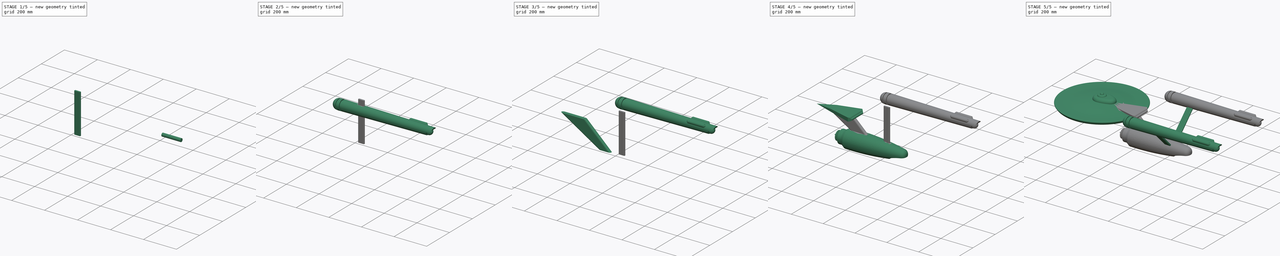
[diagram: build sequence overview — one tinted view per stage of 5, left to right]
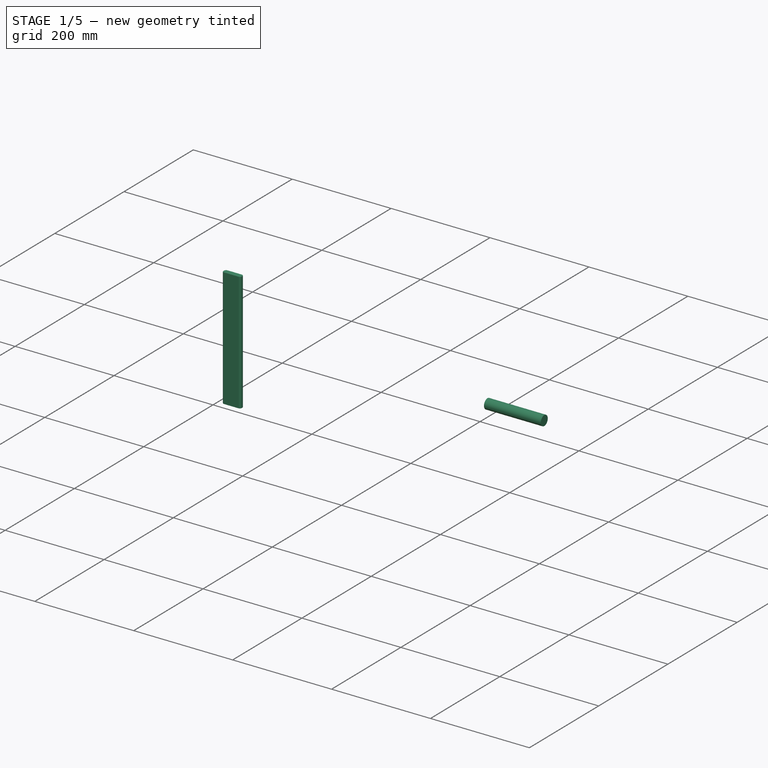
[diagram: stage 1 of 5 — iso view after this stage's code; geometry added in this stage tinted green]
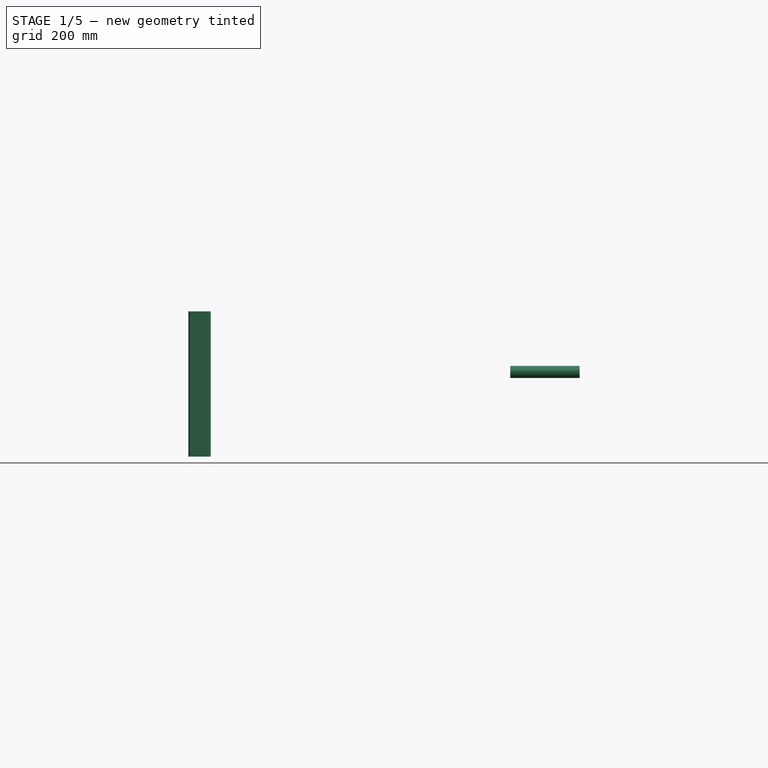
[diagram: stage 1 of 5 — front view after this stage's code; geometry added in this stage tinted green]
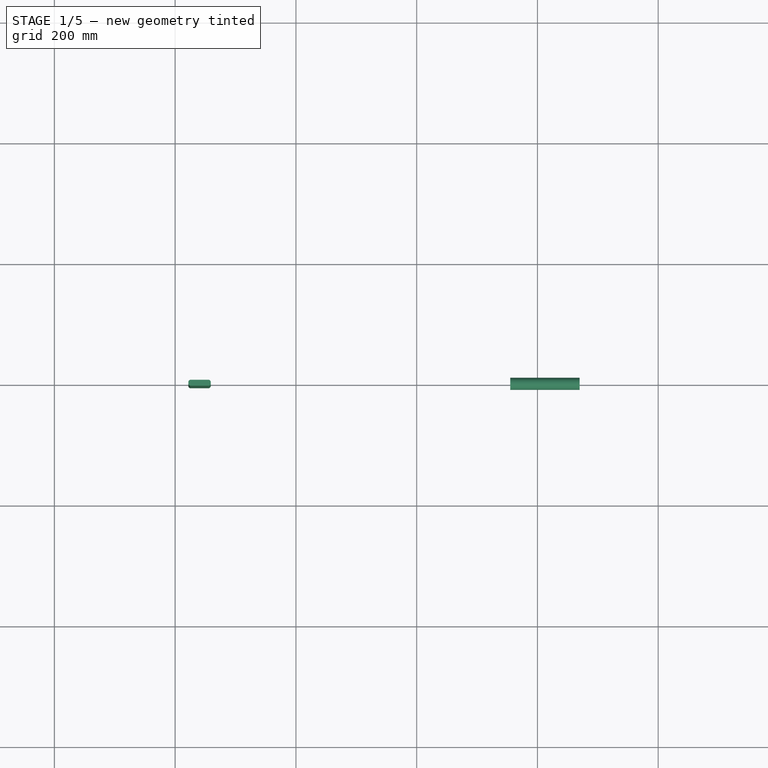
[diagram: stage 1 of 5 — top view after this stage's code; geometry added in this stage tinted green]
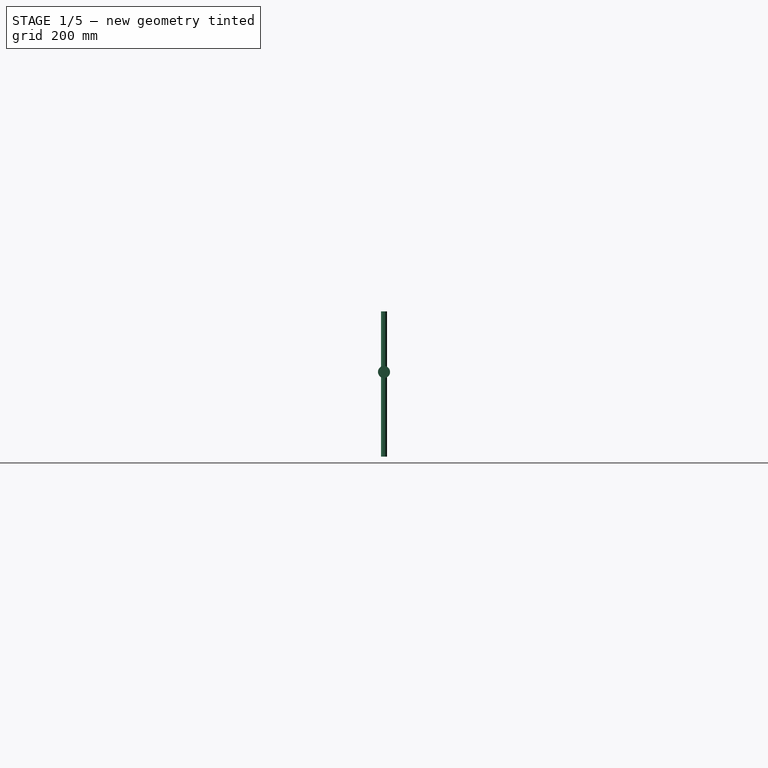
[diagram: stage 1 of 5 — right view after this stage's code; geometry added in this stage tinted green]
FCSTD DOCUMENT  (FreeCAD 0.19R23756 (Git))
Label: USS ENTERPRISE
License: Creative Commons Attribution-NonCommercial
LicenseURL: http://creativecommons.org/licenses/by-nc/4.0/
objects: Sketcher::SketchObject×12, PartDesign::Body×7, PartDesign::Pad×4, PartDesign::Revolution×3, PartDesign::Fillet×3, PartDesign::Pocket×3, Part::Feature×2, Part::MultiFuse×2, Image::ImagePlane×1, Part::Sphere×1, Part::Cylinder×1, Part::Chamfer×1, PartDesign::FeatureBase×1
note: 53 computed .brp shape members not serialized (recipe doc carries the construction recipe); baked Part::Feature solids carry a one-line shape summary decoded from their .brp

FEATURE [Part::Cylinder] Cylinder
  Angle = 360
  AttacherType = Attacher::AttachEngine3D
  Height = 115
  Placement = pos=(955,0,0) rot=(0,1,0;1.5708rad)
  Radius = 10
FEATURE [Part::Feature] Fusion001
  Placement = pos=(0,-190,0) rot=(0,0,1;0rad)
  shape: bbox 614.4 x 63.12 x 63.12 mm, 25 faces (baked)
FEATURE [Sketcher::SketchObject] Sketch011
  FullyConstrained = false
  MapMode = 5
  Placement = pos=(0,0,0) rot=(1,0,0;1.5708rad)
  Support = -> [XZ_Plane005]
  sketch-geometry (4):
    g0: LineSegment StartX=421.783 StartY=-140.192 StartZ=0 EndX=458.964 EndY=-140.192 EndZ=0
    g1: LineSegment StartX=458.964 StartY=-140.192 StartZ=0 EndX=458.964 EndY=100.295 EndZ=0
    g2: LineSegment StartX=458.964 StartY=100.295 StartZ=0 EndX=421.783 EndY=100.295 EndZ=0
    g3: LineSegment StartX=421.783 StartY=100.295 StartZ=0 EndX=421.783 EndY=-140.192 EndZ=0
  constraints (8):
    c: Coincident(g0,g1)
    c: Coincident(g1,g2)
    c: Coincident(g2,g3)
    c: Coincident(g3,g0)
    c: Horizontal(g0)
    c: Horizontal(g2)
    c: Vertical(g1)
    c: Vertical(g3)
FEATURE [PartDesign::Pad] Pad003
  Direction = (1,1,1)
  Length = 10
  Length2 = 100
  Midplane = true
  Placement = pos=(0,0,0) rot=(1,0,0;1.5708rad)
  Profile = -> Sketch011
  Type = 0
FEATURE [PartDesign::Fillet] Fillet002
  Base = -> Pad003 [Edge12,Edge11,Edge7,Edge6]
  BaseFeature = -> Pad003
  Placement = pos=(0,0,0) rot=(1,0,0;1.5708rad)
  Radius = 4
  SupportTransform = false
FEATURE [PartDesign::Body] Body005
  Group = -> [Sketch011,Pad003,Fillet002]
  Origin = -> Origin005
  Placement = pos=(0,-101.976,-43.771) rot=(1,0,0;0.785398rad)
  Tip = -> Fillet002
FEATURE [PartDesign::FeatureBase] Clone
  BaseFeature = -> Fillet002
  Placement = pos=(0,0,0) rot=(1,0,0;1.5708rad)
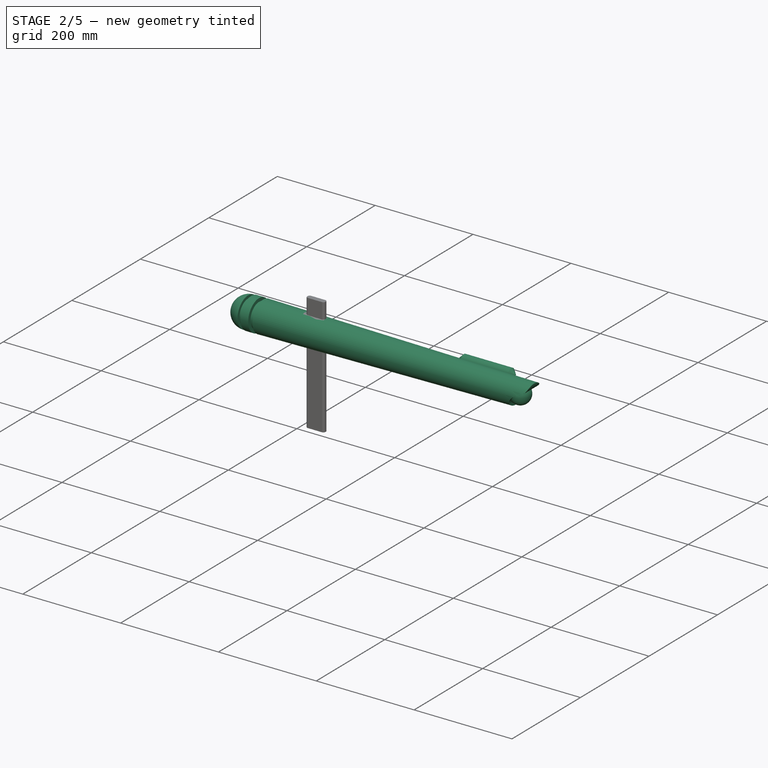
[diagram: stage 2 of 5 — iso view after this stage's code; geometry added in this stage tinted green]
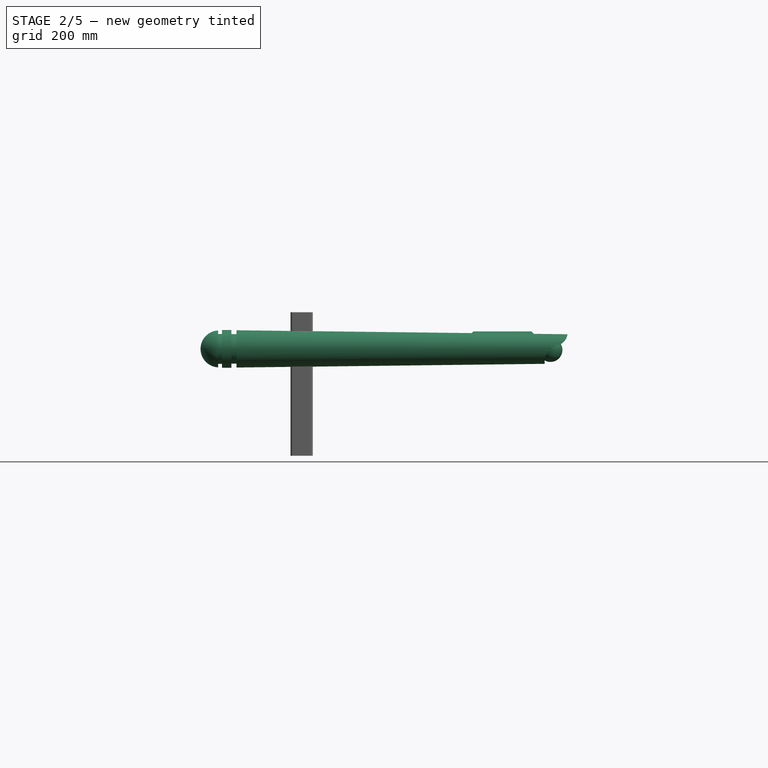
[diagram: stage 2 of 5 — front view after this stage's code; geometry added in this stage tinted green]
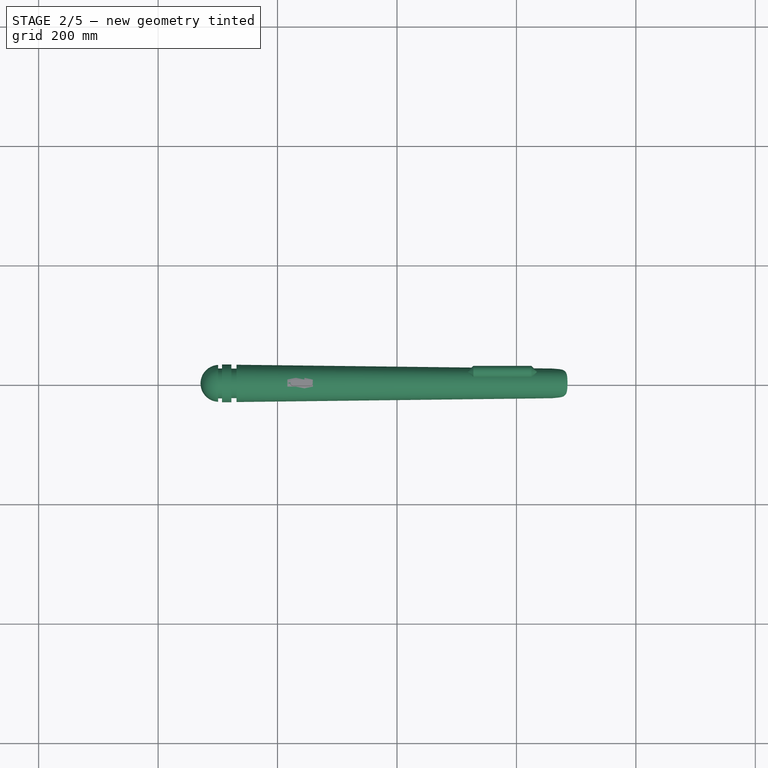
[diagram: stage 2 of 5 — top view after this stage's code; geometry added in this stage tinted green]
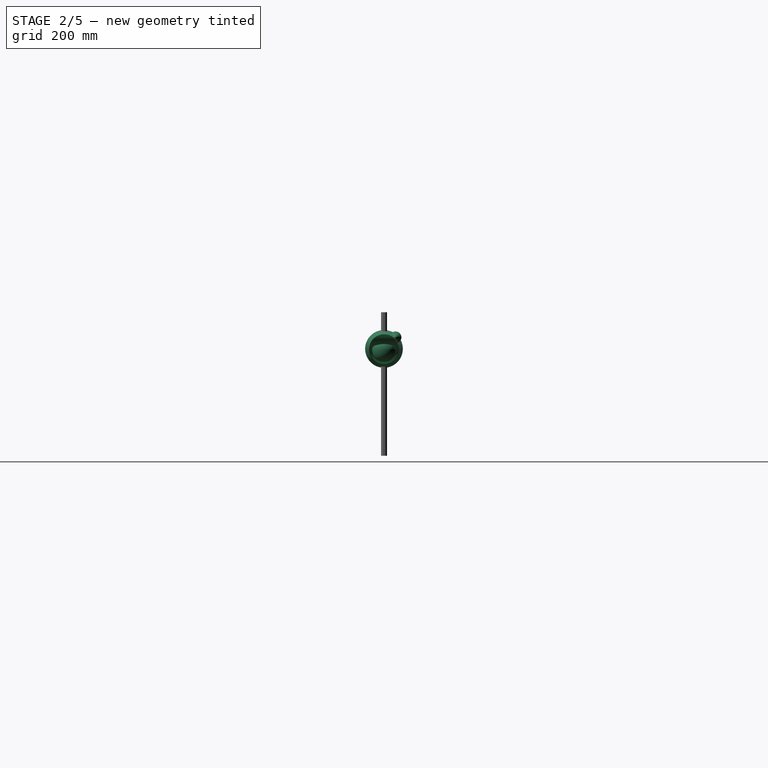
[diagram: stage 2 of 5 — right view after this stage's code; geometry added in this stage tinted green]
FEATURE [PartDesign::Body] Body003
  Group = -> [Sketch004,Pad002,Fillet001,Sketch005,Sketch006,Revolution001,Sketch007,Pocket001]
  Origin = -> Origin003
  Tip = -> Pocket001
FEATURE [Sketcher::SketchObject] Sketch008
  FullyConstrained = false
  MapMode = 5
  Placement = pos=(0,0,0) rot=(1,0,0;1.5708rad)
  Support = -> [XZ_Plane004]
  sketch-geometry (12):
    g0: LineSegment StartX=888.215 StartY=38.8108 StartZ=0 EndX=271.062 EndY=38.8108 EndZ=0
    g1: ArcOfCircle CenterX=301.969 CenterY=38.8108 CenterZ=0 NormalX=0 NormalY=0 NormalZ=1 AngleXU=0 Radius=30.9073 StartAngle=1.62005 EndAngle=3.14159
    g2: LineSegment StartX=300.447 StartY=69.6805 StartZ=0 EndX=300.52 EndY=69.6841 EndZ=0
    g3: LineSegment StartX=300.52 StartY=69.6841 StartZ=0 EndX=300.52 EndY=63.8034 EndZ=0
    g4: LineSegment StartX=300.52 StartY=63.8034 StartZ=0 EndX=307.016 EndY=63.8034 EndZ=0
    g5: LineSegment StartX=307.016 StartY=63.8034 StartZ=0 EndX=307.016 EndY=70.372 EndZ=0
    g6: LineSegment StartX=307.016 StartY=70.372 StartZ=0 EndX=322.765 EndY=70.372 EndZ=0
    g7: LineSegment StartX=322.765 StartY=70.372 StartZ=0 EndX=322.765 EndY=63.5411 EndZ=0
    g8: LineSegment StartX=322.765 StartY=63.5411 StartZ=0 EndX=331.216 EndY=63.5411 EndZ=0
    g9: LineSegment StartX=331.216 StartY=63.5411 StartZ=0 EndX=331.216 EndY=70.0263 EndZ=0
    g10: LineSegment StartX=331.216 StartY=70.0263 StartZ=0 EndX=888.215 EndY=63.3335 EndZ=0
    g11: LineSegment StartX=888.215 StartY=63.3335 StartZ=0 EndX=888.215 EndY=38.8108 EndZ=0
  constraints (21):
    c: Horizontal(g0)
    c: Perpendicular(g0,g1) = 1.5708
    c: Tangent(g1,g2) = 1.5708
    c: Coincident(g2,g3)
    c: Coincident(g3,g4)
    c: Coincident(g4,g5)
    c: Coincident(g5,g6)
    c: Horizontal(g6)
    c: Coincident(g6,g7)
    c: Vertical(g7)
    c: Coincident(g7,g8)
    c: Coincident(g8,g9)
    c: Coincident(g9,g10)
    c: Coincident(g10,g11)
    c: Coincident(g11,g0)
    c: Vertical(g11)
    c: Horizontal(g8)
    c: Horizontal(g4)
    c: Vertical(g3)
    c: Vertical(g5)
    c: Vertical(g9)
FEATURE [Sketcher::SketchObject] Sketch009
  ExternalGeometry = -> [Sketch008]
  FullyConstrained = false
  MapMode = 5
  Placement = pos=(0,0,0) rot=(1,0,0;1.5708rad)
  Support = -> [XZ_Plane004]
  sketch-geometry (1):
    g0: LineSegment StartX=271.062 StartY=38.8108 StartZ=0 EndX=888.429 EndY=38.8108 EndZ=0
  constraints (2):
    c: Coincident(g0,g-3)
    c: Horizontal(g0)
FEATURE [PartDesign::Revolution] Revolution002
  Angle = 360
  Axis = (1,0,0)
  Base = (271.062,8.6e-15,38.8108)
  Placement = pos=(0,0,0) rot=(1,0,0;1.5708rad)
  Profile = -> Sketch008
  ReferenceAxis = -> Sketch009 [Edge1]
  Reversed = true
FEATURE [Sketcher::SketchObject] Sketch010
  FullyConstrained = false
  MapMode = 5
  Placement = pos=(0,0,0) rot=(1,0,0;1.5708rad)
  Support = -> [XZ_Plane004]
  sketch-geometry (6):
    g0: LineSegment StartX=900.198 StartY=67.3385 StartZ=0 EndX=885.598 EndY=66.7317 EndZ=0
    g1: ArcOfCircle CenterX=864.156 CenterY=65.8404 CenterZ=0 NormalX=0 NormalY=0 NormalZ=1 AngleXU=0 Radius=21.4605 StartAngle=4.97062 EndAngle=6.32473
    g2: ArcOfCircle CenterX=877.333 CenterY=15.9535 CenterZ=0 NormalX=0 NormalY=0 NormalZ=1 AngleXU=0 Radius=30.1372 StartAngle=1.82902 EndAngle=3.69944
    g3: LineSegment StartX=851.765 StartY=-8.9e-15 StartZ=0 EndX=870.898 EndY=-30.6647 EndZ=0
    g4: LineSegment StartX=870.898 StartY=-30.6647 StartZ=0 EndX=932.641 EndY=17.9781 EndZ=0
    g5: LineSegment StartX=932.641 StartY=17.9781 StartZ=0 EndX=900.198 EndY=67.3385 EndZ=0
  constraints (7):
    c: Perpendicular(g0,g1) = 4.71239
    c: Tangent(g1,g2) = 1.5708
    c: PointOnObject(g2,g-1)
    c: Tangent(g2,g3) = -1.5708
    c: Coincident(g3,g4)
    c: Coincident(g4,g5)
    c: Coincident(g5,g0)
FEATURE [PartDesign::Pocket] Pocket002
  BaseFeature = -> Revolution002
  Length = 5
  Length2 = 100
  Midplane = true
  Placement = pos=(0,0,0) rot=(1,0,0;1.5708rad)
  Profile = -> Sketch010
  Type = 1
FEATURE [PartDesign::Body] Body004
  Group = -> [Sketch008,Sketch009,Revolution002,Sketch010,Pocket002]
  Origin = -> Origin004
  Tip = -> Pocket002
FEATURE [Part::Sphere] Sphere
  Angle1 = -90
  Angle2 = 90
  Angle3 = 360
  AttacherType = Attacher::AttachEngine3D
  Placement = pos=(857,0,37) rot=(0,0,1;0rad)
  Radius = 20
FEATURE [Part::Chamfer] Chamfer
  Base = -> Cylinder
  Edges = 2 edges r=9: [Edge1,Edge3]
  Placement = pos=(-236,19.0919,58.0919) rot=(1,0,0;5.49779rad)
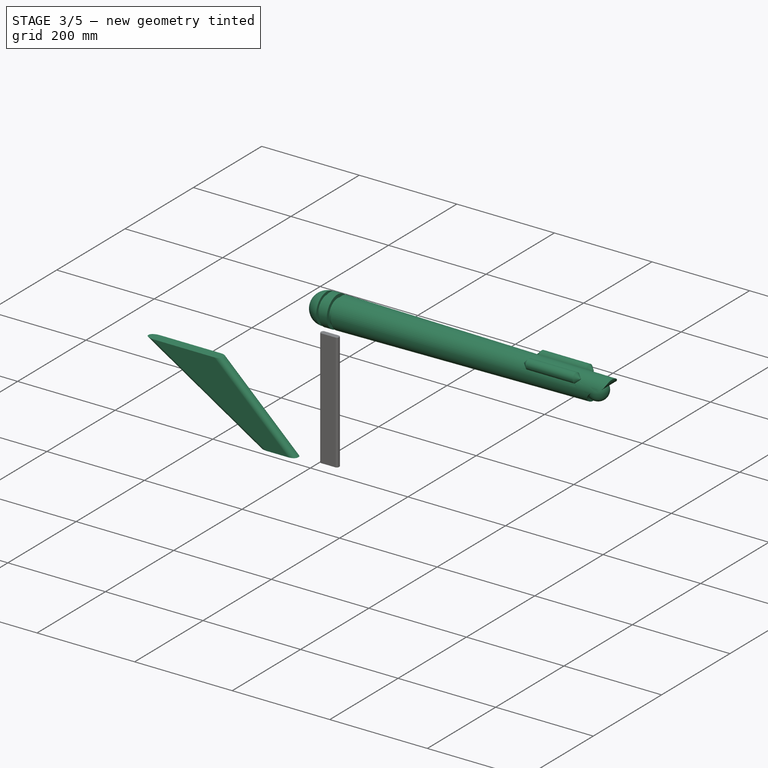
[diagram: stage 3 of 5 — iso view after this stage's code; geometry added in this stage tinted green]
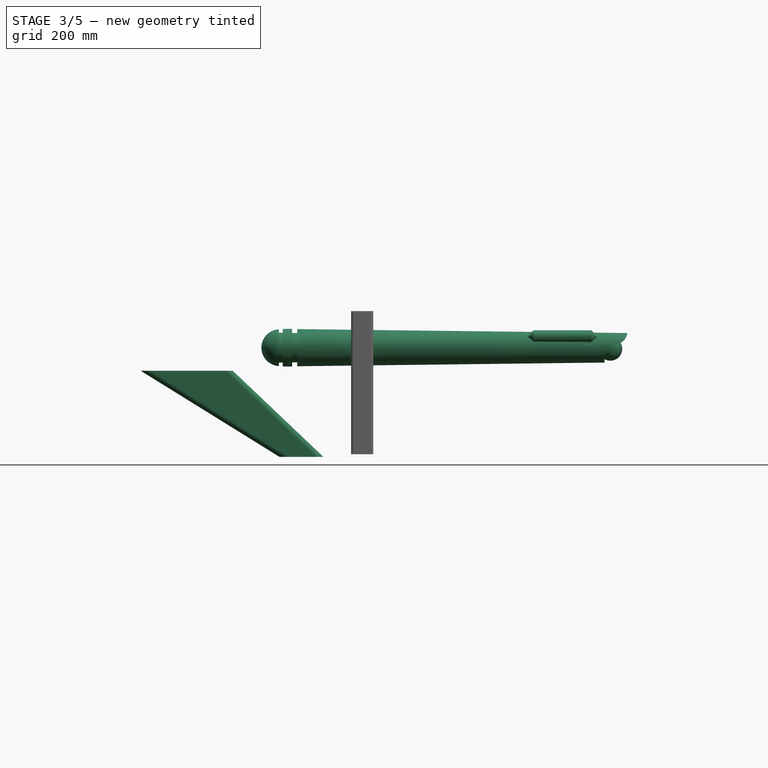
[diagram: stage 3 of 5 — front view after this stage's code; geometry added in this stage tinted green]
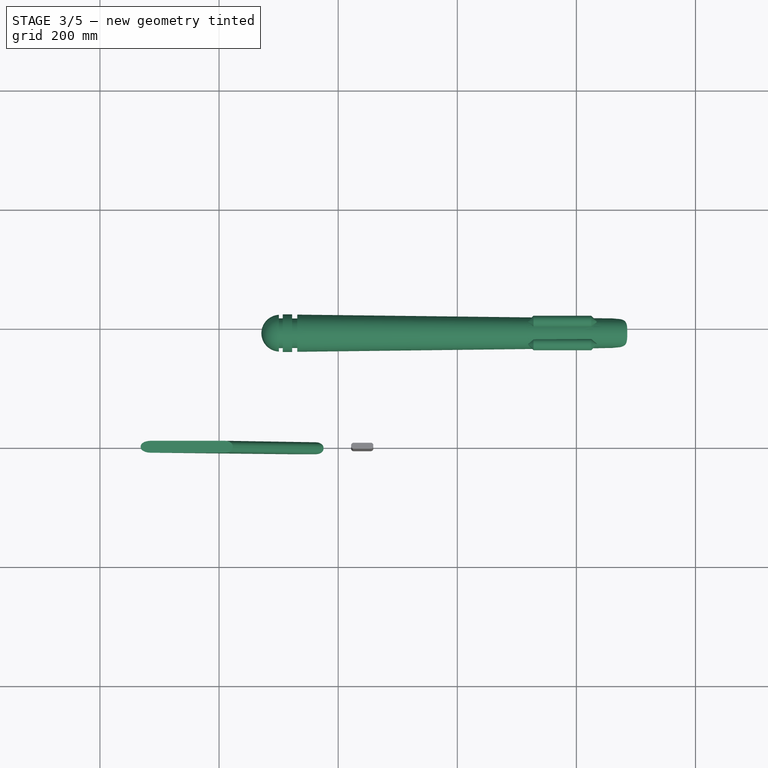
[diagram: stage 3 of 5 — top view after this stage's code; geometry added in this stage tinted green]
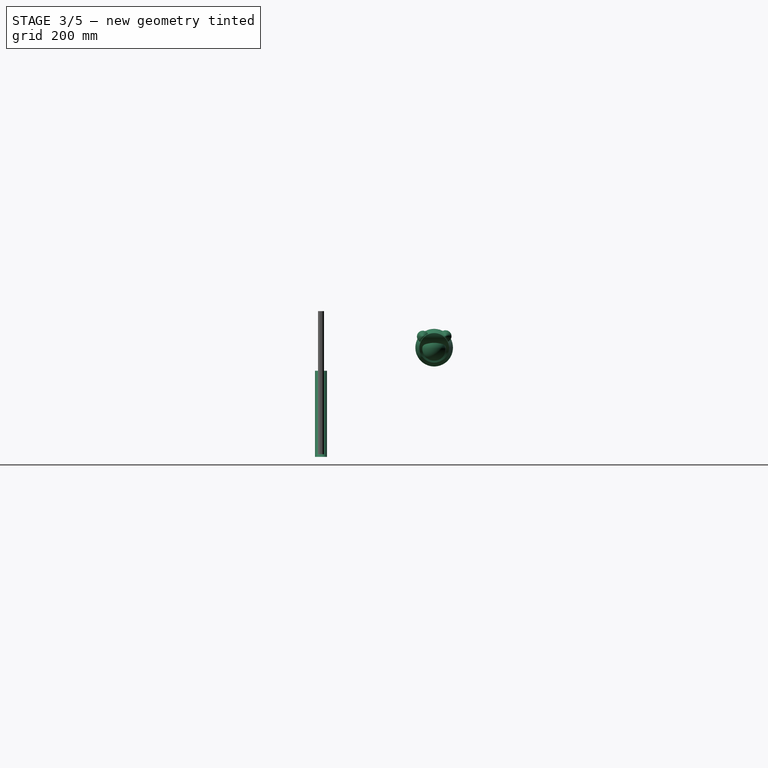
[diagram: stage 3 of 5 — right view after this stage's code; geometry added in this stage tinted green]
FEATURE [PartDesign::Body] Body002
  Group = -> [Sketch002,Pad001,Sketch003,Pocket]
  Origin = -> Origin002
  Tip = -> Pocket
FEATURE [Sketcher::SketchObject] Sketch004
  FullyConstrained = false
  MapMode = 5
  Placement = pos=(0,0,0) rot=(1,0,0;1.5708rad)
  Support = -> [XZ_Plane003]
  sketch-geometry (4):
    g0: LineSegment StartX=68.392 StartY=0 StartZ=0 EndX=301.532 EndY=-144.636 EndZ=0
    g1: LineSegment StartX=301.532 StartY=-144.636 StartZ=0 EndX=375.381 EndY=-144.636 EndZ=0
    g2: LineSegment StartX=375.381 StartY=-144.636 StartZ=0 EndX=223.041 EndY=0 EndZ=0
    g3: LineSegment StartX=223.041 StartY=0 StartZ=0 EndX=68.392 EndY=0 EndZ=0
  constraints (7):
    c: PointOnObject(g0,g-1)
    c: Coincident(g0,g1)
    c: Horizontal(g1)
    c: Coincident(g1,g2)
    c: PointOnObject(g2,g-1)
    c: Coincident(g2,g3)
    c: Coincident(g3,g0)
FEATURE [PartDesign::Pad] Pad002
  Direction = (1,1,1)
  Length = 20
  Length2 = 100
  Midplane = true
  Placement = pos=(0,0,0) rot=(1,0,0;1.5708rad)
  Profile = -> Sketch004
  Type = 0
FEATURE [PartDesign::Fillet] Fillet001
  Base = -> Pad002 [Edge4,Edge3,Edge10,Edge9]
  BaseFeature = -> Pad002
  Placement = pos=(0,0,0) rot=(1,0,0;1.5708rad)
  Radius = 9
  SupportTransform = false
FEATURE [Part::Feature] Chamfer001
  Placement = pos=(-236,-18.9584,57.3848) rot=(1,0,0;5.49779rad)
  shape: bbox 115 x 20 x 20 mm, 5 faces (baked)
FEATURE [Part::MultiFuse] Fusion
  Placement = pos=(0,190,0) rot=(0,0,1;0rad)
  Shapes = -> [Chamfer001,Chamfer,Sphere,Pocket002,Body004]
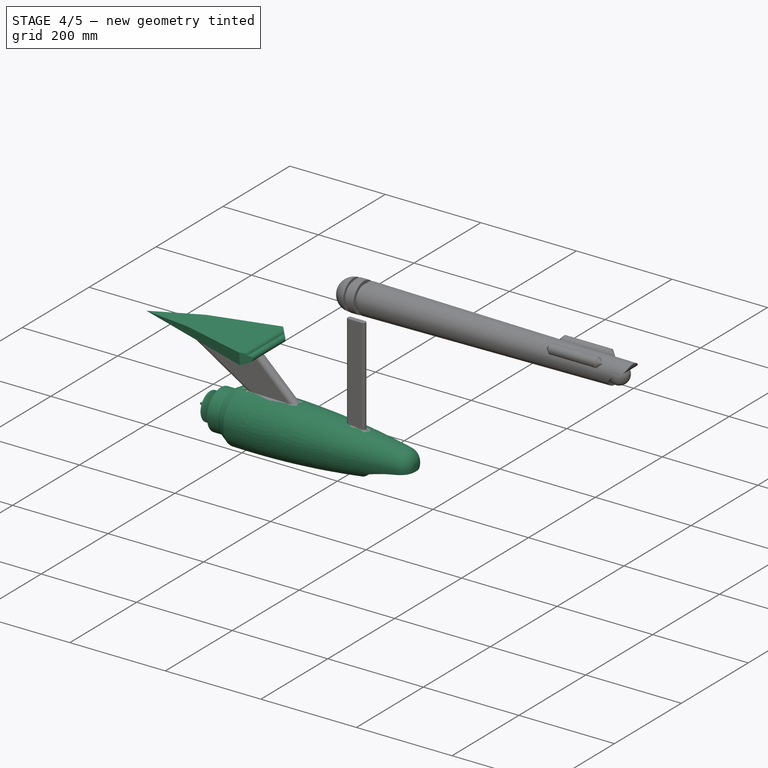
[diagram: stage 4 of 5 — iso view after this stage's code; geometry added in this stage tinted green]
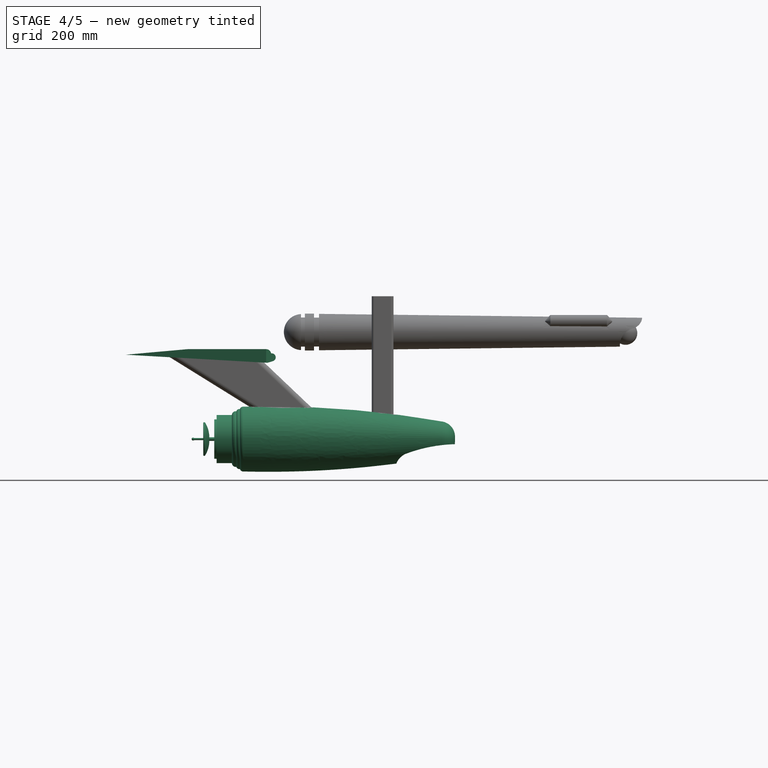
[diagram: stage 4 of 5 — front view after this stage's code; geometry added in this stage tinted green]
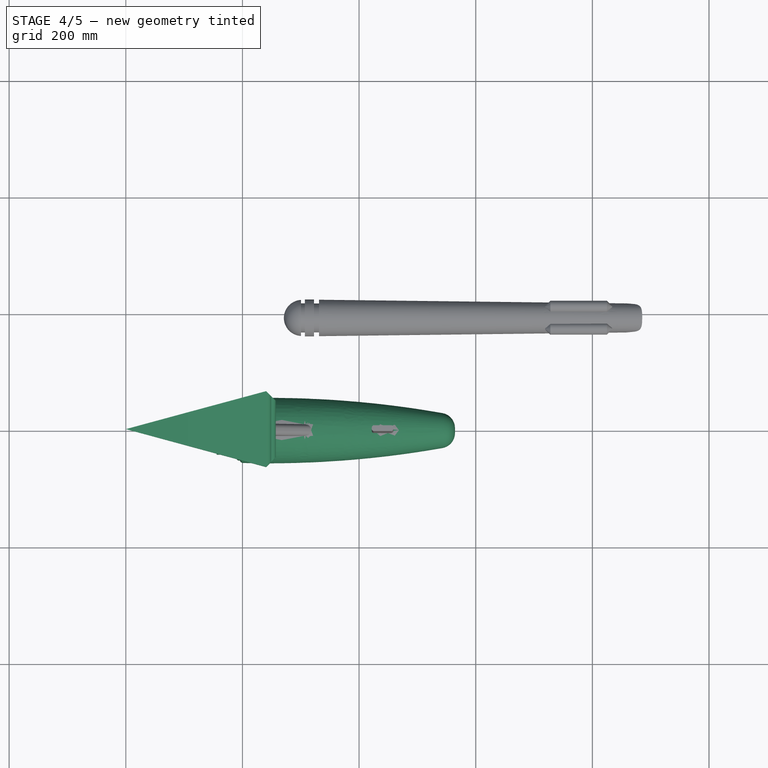
[diagram: stage 4 of 5 — top view after this stage's code; geometry added in this stage tinted green]
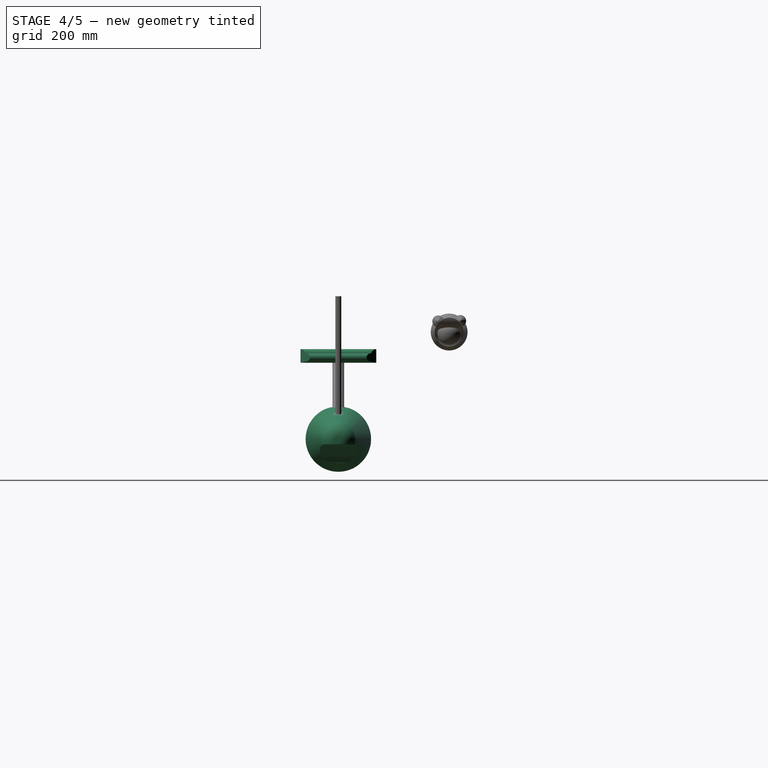
[diagram: stage 4 of 5 — right view after this stage's code; geometry added in this stage tinted green]
FEATURE [PartDesign::Body] Body001
  Group = -> [Sketch001,Pad,Fillet]
  Origin = -> Origin001
  Tip = -> Fillet
FEATURE [Sketcher::SketchObject] Sketch002
  FullyConstrained = false
  MapMode = 5
  Placement = pos=(0,0,0) rot=(1,0,0;1.5708rad)
  Support = -> [XZ_Plane002]
  sketch-geometry (6):
    g0: LineSegment StartX=0 StartY=0 StartZ=0 EndX=105.497 EndY=9.49436 EndZ=0
    g1: LineSegment StartX=105.497 StartY=9.49436 StartZ=0 EndX=240.621 EndY=9.49436 EndZ=0
    g2: ArcOfCircle CenterX=240.621 CenterY=0.789545 CenterZ=0 NormalX=0 NormalY=0 NormalZ=1 AngleXU=0 Radius=8.70481 StartAngle=0.159226 EndAngle=1.5708
    g3: ArcOfCircle CenterX=250.292 CenterY=-4.53285 CenterZ=0 NormalX=0 NormalY=0 NormalZ=1 AngleXU=0 Radius=6.78845 StartAngle=5.00163 EndAngle=8.01321
    g4: LineSegment StartX=252.229 StartY=-11.0393 StartZ=0 EndX=242.804 EndY=-13.8441 EndZ=0
    g5: LineSegment StartX=242.804 StartY=-13.8441 StartZ=0 EndX=0 EndY=0 EndZ=0
  constraints (8):
    c: Coincident(g-1,g0)
    c: Coincident(g0,g1)
    c: Horizontal(g1)
    c: Tangent(g1,g2) = 1.5708
    c: Perpendicular(g2,g3) = 1.5708
    c: Tangent(g3,g4) = 1.5708
    c: Coincident(g4,g5)
    c: Coincident(g5,g0)
FEATURE [PartDesign::Pad] Pad001
  Direction = (1,1,1)
  Length = 130
  Length2 = 100
  Midplane = true
  Placement = pos=(0,0,0) rot=(1,0,0;1.5708rad)
  Profile = -> Sketch002
  Type = 0
FEATURE [Sketcher::SketchObject] Sketch003
  ExternalGeometry = -> [Pad001]
  FullyConstrained = false
  MapMode = 5
  Support = -> [XY_Plane002]
  sketch-geometry (5):
    g0: LineSegment StartX=0 StartY=0 StartZ=0 EndX=240.621 EndY=65 EndZ=0
    g1: LineSegment StartX=240.621 StartY=65 StartZ=0 EndX=305.621 EndY=0 EndZ=0
    g2: LineSegment StartX=305.621 StartY=0 StartZ=0 EndX=240.621 EndY=-65 EndZ=0
    g3: LineSegment StartX=240.621 StartY=-65 StartZ=0 EndX=0 EndY=0 EndZ=0
    g4: Circle CenterX=0 CenterY=0 CenterZ=0 NormalX=0 NormalY=0 NormalZ=1 AngleXU=0 Radius=325.029
  constraints (10):
    c: Coincident(g-1,g0)
    c: Coincident(g0,g-3)
    c: Coincident(g0,g1)
    c: PointOnObject(g1,g-1)
    c: Coincident(g1,g2)
    c: Coincident(g2,g-4)
    c: Coincident(g2,g3)
    c: Coincident(g3,g0)
    c: Angle(g1,g-1) = 0.785398
    c: Coincident(g4,g0)
FEATURE [PartDesign::Pocket] Pocket
  BaseFeature = -> Pad001
  Length = 5
  Length2 = 100
  Midplane = true
  Placement = pos=(0,0,0) rot=(1,0,0;1.5708rad)
  Profile = -> Sketch003
  Type = 1
FEATURE [Sketcher::SketchObject] Sketch005
  ExternalGeometry = -> [Fillet001]
  FullyConstrained = false
  MapMode = 5
  Placement = pos=(0,0,0) rot=(1,0,0;1.5708rad)
  Support = -> [XZ_Plane003]
  sketch-geometry (18):
    g0: LineSegment StartX=318.605 StartY=-144.636 StartZ=0 EndX=112.917 EndY=-144.636 EndZ=0
    g1: ArcOfCircle CenterX=115.444 CenterY=-144.636 CenterZ=0 NormalX=0 NormalY=0 NormalZ=1 AngleXU=0 Radius=2.52711 StartAngle=0.752883 EndAngle=3.14159
    g2: LineSegment StartX=117.288 StartY=-142.908 StartZ=0 EndX=135.86 EndY=-142.908 EndZ=0
    g3: ArcOfCircle CenterX=28.6154 CenterY=-142.908 CenterZ=0 NormalX=0 NormalY=0 NormalZ=1 AngleXU=0 Radius=107.244 StartAngle=0 EndAngle=0.235411
    g4: ArcOfCircle CenterX=134.567 CenterY=-117.495 CenterZ=0 NormalX=0 NormalY=0 NormalZ=1 AngleXU=0 Radius=1.71219 StartAngle=0.558504 EndAngle=3.377
    g5: ArcOfCircle CenterX=96.099 CenterY=-141.532 CenterZ=0 NormalX=0 NormalY=0 NormalZ=1 AngleXU=0 Radius=47.0723 StartAngle=3e-16 EndAngle=0.558504
    g6: LineSegment StartX=143.171 StartY=-141.532 StartZ=0 EndX=151.682 EndY=-141.532 EndZ=0
    g7: LineSegment StartX=151.682 StartY=-141.532 StartZ=0 EndX=151.682 EndY=-110.814 EndZ=0
    g8: LineSegment StartX=151.682 StartY=-110.814 StartZ=0 EndX=155.823 EndY=-110.814 EndZ=0
    g9: LineSegment StartX=155.823 StartY=-110.814 StartZ=0 EndX=155.823 EndY=-103.279 EndZ=0
    g10: LineSegment StartX=155.823 StartY=-103.279 StartZ=0 EndX=181.958 EndY=-103.279 EndZ=0
    g11: ArcOfCircle CenterX=188.231 CenterY=-103.279 CenterZ=0 NormalX=0 NormalY=0 NormalZ=1 AngleXU=0 Radius=6.27332 StartAngle=1.36063 EndAngle=3.14159
    g12: ArcOfCircle CenterX=194.496 CenterY=-98.2012 CenterZ=0 NormalX=0 NormalY=0 NormalZ=1 AngleXU=0 Radius=5.06742 StartAngle=1.334 EndAngle=2.93142
    g13: ArcOfCircle CenterX=201.018 CenterY=-94.5623 CenterZ=0 NormalX=0 NormalY=0 NormalZ=1 AngleXU=0 Radius=5.48678 StartAngle=1.59647 EndAngle=2.90479
    g14: ArcOfCircle CenterX=244.838 CenterY=-1800.71 CenterZ=0 NormalX=0 NormalY=0 NormalZ=1 AngleXU=0 Radius=1712.2 StartAngle=1.39577 EndAngle=1.59647
    g15: ArcOfCircle CenterX=538.469 CenterY=-140.208 CenterZ=0 NormalX=0 NormalY=0 NormalZ=1 AngleXU=0 Radius=25.9329 StartAngle=0 EndAngle=1.39577
    g16: LineSegment StartX=564.402 StartY=-140.208 StartZ=0 EndX=564.402 EndY=-144.636 EndZ=0
    g17: LineSegment StartX=564.402 StartY=-144.636 StartZ=0 EndX=318.605 EndY=-144.636 EndZ=0
  constraints (28):
    c: Coincident(g-3,g0)
    c: Horizontal(g0)
    c: Perpendicular(g0,g1) = 1.5708
    c: Coincident(g1,g2)
    c: Horizontal(g2)
    c: Perpendicular(g2,g3) = 1.5708
    c: Tangent(g3,g4) = 1.5708
    c: Tangent(g4,g5) = -1.5708
    c: Perpendicular(g5,g6) = 4.71239
    c: Coincident(g6,g7)
    c: Vertical(g7)
    c: Horizontal(g6)
    c: Coincident(g7,g8)
    c: Horizontal(g8)
    c: Coincident(g8,g9)
    c: Vertical(g9)
    c: Coincident(g9,g10)
    c: Horizontal(g10)
    c: Perpendicular(g10,g11) = 4.71239
    c: Perpendicular(g11,g12) = 1.5708
    c: Perpendicular(g12,g13) = 1.5708
    c: Tangent(g13,g14) = -1.5708
    c: Tangent(g14,g15) = -1.5708
    c: Tangent(g15,g16) = 1.5708
    c: Coincident(g16,g17)
    c: Coincident(g17,g0)
    c: Horizontal(g17)
    c: Vertical(g16)
FEATURE [Sketcher::SketchObject] Sketch006
  ExternalGeometry = -> [Fillet001]
  FullyConstrained = true
  MapMode = 5
  Placement = pos=(0,0,0) rot=(1,0,0;1.5708rad)
  Support = -> [XZ_Plane003]
  sketch-geometry (1):
    g0: LineSegment StartX=318.605 StartY=-144.636 StartZ=0 EndX=362.31 EndY=-144.636 EndZ=0
  constraints (2):
    c: Coincident(g0,g-3)
    c: Coincident(g0,g-3)
FEATURE [PartDesign::Revolution] Revolution001
  Angle = 360
  Axis = (1,0,0)
  Base = (318.605,-3.21e-14,-144.636)
  BaseFeature = -> Fillet001
  Placement = pos=(0,0,0) rot=(1,0,0;1.5708rad)
  Profile = -> Sketch005
  ReferenceAxis = -> Sketch006 [Edge1]
  Reversed = true
FEATURE [Sketcher::SketchObject] Sketch007
  FullyConstrained = false
  MapMode = 5
  Placement = pos=(0,0,0) rot=(1,0,0;1.5708rad)
  Support = -> [XZ_Plane003]
  sketch-geometry (5):
    g0: LineSegment StartX=594.783 StartY=-153.402 StartZ=0 EndX=570.219 EndY=-153.402 EndZ=0
    g1: ArcOfCircle CenterX=570.219 CenterY=-406.821 CenterZ=0 NormalX=0 NormalY=0 NormalZ=1 AngleXU=0 Radius=253.419 StartAngle=1.5708 EndAngle=1.93057
    g2: ArcOfCircle CenterX=491.241 CenterY=-196.854 CenterZ=0 NormalX=0 NormalY=0 NormalZ=1 AngleXU=0 Radius=29.0894 StartAngle=1.93057 EndAngle=3.52975
    g3: LineSegment StartX=464.316 StartY=-207.864 StartZ=0 EndX=481.337 EndY=-249.491 EndZ=0
    g4: LineSegment StartX=481.337 StartY=-249.491 StartZ=0 EndX=594.783 EndY=-153.402 EndZ=0
  constraints (6):
    c: Horizontal(g0)
    c: Tangent(g0,g1) = -1.5708
    c: Tangent(g1,g2) = -1.5708
    c: Tangent(g2,g3) = -1.5708
    c: Coincident(g3,g4)
    c: Coincident(g4,g0)
FEATURE [PartDesign::Pocket] Pocket001
  BaseFeature = -> Revolution001
  Length = 5
  Length2 = 100
  Midplane = true
  Placement = pos=(0,0,0) rot=(1,0,0;1.5708rad)
  Profile = -> Sketch007
  Type = 1
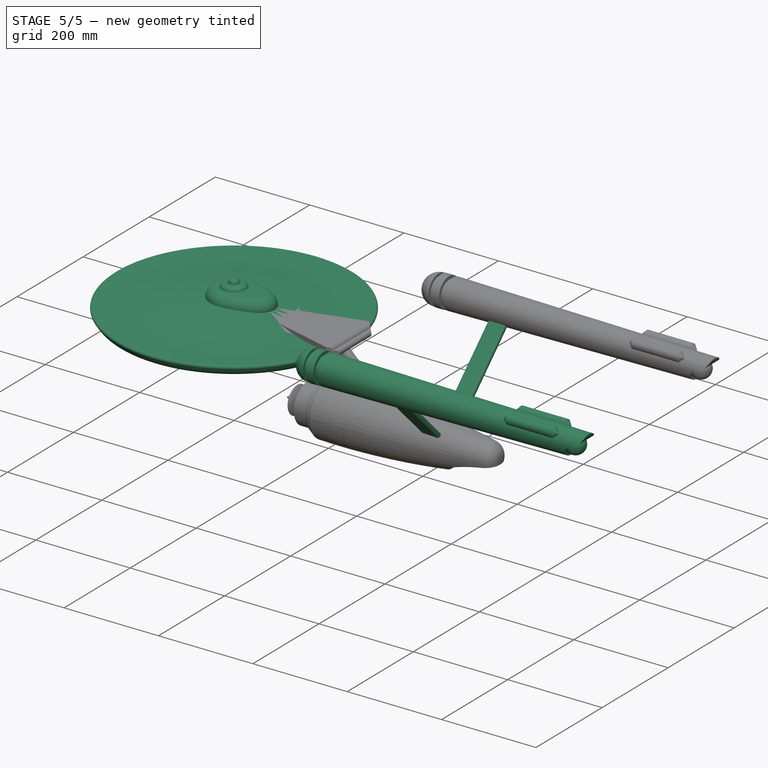
[diagram: stage 5 of 5 — iso view after this stage's code; geometry added in this stage tinted green]
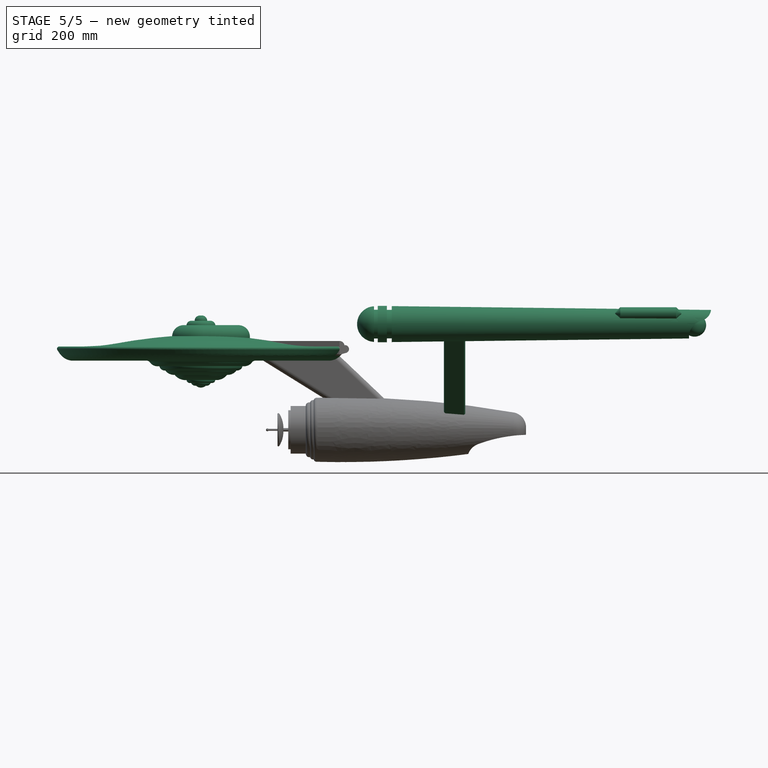
[diagram: stage 5 of 5 — front view after this stage's code; geometry added in this stage tinted green]
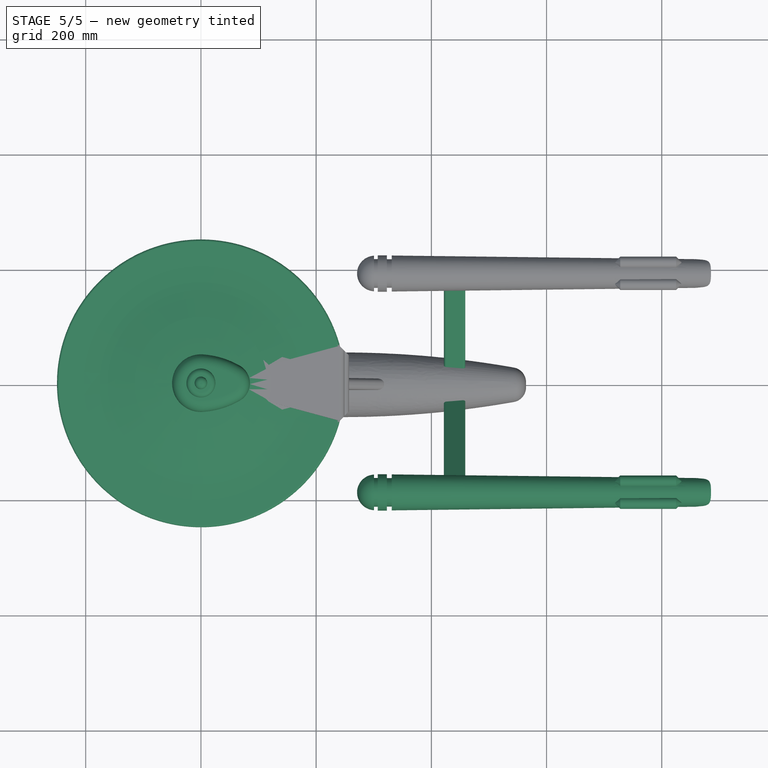
[diagram: stage 5 of 5 — top view after this stage's code; geometry added in this stage tinted green]
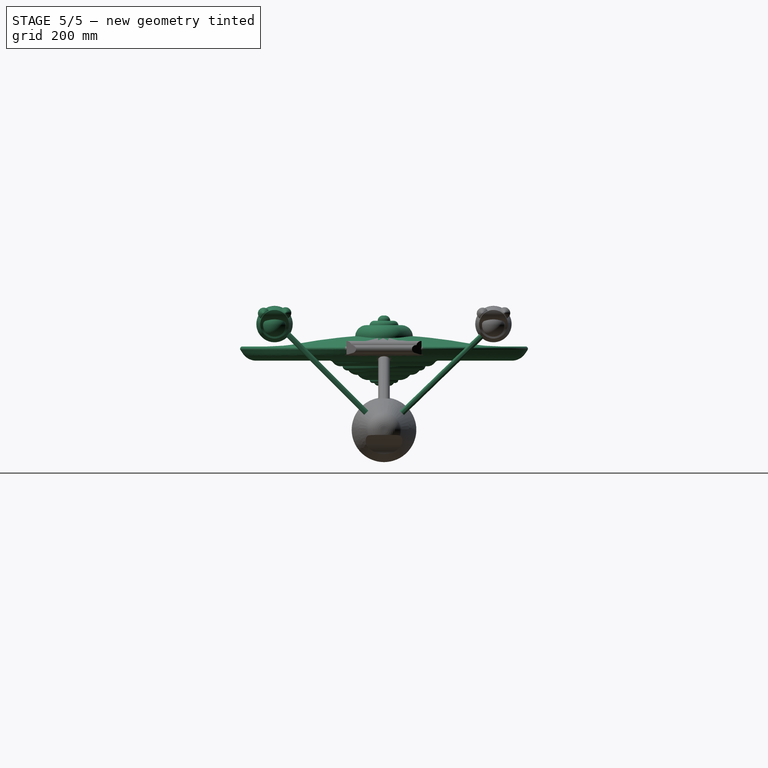
[diagram: stage 5 of 5 — right view after this stage's code; geometry added in this stage tinted green]
FEATURE [Image::ImagePlane] ImagePlane
  Placement = pos=(165,0,125) rot=(-1,0,0;4.71239rad)
  XSize = 1666.6
  YSize = 1260.45
FEATURE [Sketcher::SketchObject] Sketch
  FullyConstrained = false
  MapMode = 5
  Placement = pos=(0,0,0) rot=(1,0,0;1.5708rad)
  Support = -> [XZ_Plane]
  sketch-geometry (21):
    g0: LineSegment StartX=0 StartY=0 StartZ=0 EndX=-1.6e-15 EndY=-71.4324 EndZ=0
    g1: ArcOfCircle CenterX=8e-16 CenterY=-58.7629 CenterZ=0 NormalX=0 NormalY=0 NormalZ=1 AngleXU=0 Radius=12.6696 StartAngle=3.96687 EndAngle=4.71239
    g2: ArcOfCircle CenterX=-9.90279 CenterY=-60.6143 CenterZ=0 NormalX=0 NormalY=0 NormalZ=1 AngleXU=0 Radius=7.57127 StartAngle=3.46133 EndAngle=4.88606
    g3: ArcOfCircle CenterX=-19.335 CenterY=-57.7989 CenterZ=0 NormalX=0 NormalY=0 NormalZ=1 AngleXU=0 Radius=5.65936 StartAngle=3.23461 EndAngle=5.12024
    g4: ArcOfCircle CenterX=-26.7556 CenterY=-34.4032 CenterZ=0 NormalX=0 NormalY=0 NormalZ=1 AngleXU=0 Radius=23.9879 StartAngle=3.80864 EndAngle=4.7869
    g5: ArcOfCircle CenterX=-46.9795 CenterY=-30.9611 CenterZ=0 NormalX=0 NormalY=0 NormalZ=1 AngleXU=0 Radius=18.3345 StartAngle=3.76232 EndAngle=4.7876
    g6: ArcOfCircle CenterX=-63.1589 CenterY=-32.7081 CenterZ=0 NormalX=0 NormalY=0 NormalZ=1 AngleXU=0 Radius=9.00609 StartAngle=3.29745 EndAngle=4.85332
    g7: ArcOfCircle CenterX=-75.3529 CenterY=-18.2729 CenterZ=0 NormalX=0 NormalY=0 NormalZ=1 AngleXU=0 Radius=16.1729 StartAngle=3.75706 EndAngle=4.91769
    g8: ArcOfCircle CenterX=-94.2248 CenterY=-31.6169 CenterZ=0 NormalX=0 NormalY=0 NormalZ=1 AngleXU=0 Radius=6.94011 StartAngle=0.615464 EndAngle=1.5708
    g9: LineSegment StartX=-94.2248 StartY=-24.6768 StartZ=0 EndX=-221.92 EndY=-24.6768 EndZ=0
    g10: ArcOfCircle CenterX=-221.92 CenterY=3.24524 CenterZ=0 NormalX=0 NormalY=0 NormalZ=1 AngleXU=0 Radius=27.922 StartAngle=3.72689 EndAngle=4.71239
    g11: LineSegment StartX=-245.194 StartY=-12.1801 StartZ=0 EndX=-249.194 EndY=-6.14529 EndZ=0
    g12: ArcOfCircle CenterX=-245.894 CenterY=-3.95846 CenterZ=0 NormalX=0 NormalY=0 NormalZ=1 AngleXU=0 Radius=3.95846 StartAngle=1.5708 EndAngle=3.72689
    g13: LineSegment StartX=-245.894 StartY=0 StartZ=0 EndX=-203.004 EndY=0 EndZ=0
    g14: ArcOfCircle CenterX=-203.004 CenterY=300.639 CenterZ=0 NormalX=0 NormalY=0 NormalZ=1 AngleXU=0 Radius=300.639 StartAngle=4.71239 EndAngle=4.89573
    g15: ArcOfCircle CenterX=20.6481 CenterY=-905.554 CenterZ=0 NormalX=0 NormalY=0 NormalZ=1 AngleXU=0 Radius=926.114 StartAngle=1.62025 EndAngle=1.75413
    g16: LineSegment StartX=-25.1325 StartY=19.4273 StartZ=0 EndX=-25.1325 EndY=36.1173 EndZ=0
    g17: ArcOfCircle CenterX=-16.6088 CenterY=36.1173 CenterZ=0 NormalX=0 NormalY=0 NormalZ=1 AngleXU=0 Radius=8.5237 StartAngle=1.5708 EndAngle=3.14159
    g18: LineSegment StartX=-16.6088 StartY=44.641 StartZ=0 EndX=-10.8937 EndY=44.641 EndZ=0
    g19: ArcOfCircle CenterX=-1.7442 CenterY=44.641 CenterZ=0 NormalX=0 NormalY=0 NormalZ=1 AngleXU=0 Radius=9.14948 StartAngle=1.37899 EndAngle=3.14159
    g20: LineSegment StartX=0 StartY=53.6227 StartZ=0 EndX=0 EndY=0 EndZ=0
  constraints (29):
    c: Coincident(g-1,g0)
    c: PointOnObject(g0,g-2)
    c: Perpendicular(g0,g1) = 1.5708
    c: Coincident(g2,g1)
    c: Coincident(g3,g2)
    c: Coincident(g4,g3)
    c: Coincident(g5,g4)
    c: Coincident(g6,g5)
    c: Coincident(g7,g6)
    c: Tangent(g7,g8) = 1.5708
    c: Tangent(g8,g9) = -1.5708
    c: Tangent(g9,g10) = 1.5708
    c: Tangent(g10,g11) = 1.5708
    c: Horizontal(g9)
    c: Tangent(g11,g12) = 1.5708
    c: PointOnObject(g12,g-1)
    c: Tangent(g12,g13) = 1.5708
    c: Horizontal(g13)
    c: Tangent(g13,g14) = -1.5708
    c: Tangent(g14,g15) = 1.5708
    c: Tangent(g16,g17) = 1.5708
    c: Tangent(g17,g18) = 1.5708
    c: Perpendicular(g18,g19) = 4.71239
    c: Horizontal(g18)
    c: Vertical(g16)
    c: Coincident(g15,g16)
    c: PointOnObject(g19,g-2)
    c: Coincident(g20,g19)
    c: Coincident(g20,g0)
FEATURE [PartDesign::Revolution] Revolution
  Angle = 360
  Axis = (0,2e-16,1)
  Base = (0,0,0)
  Placement = pos=(0,0,0) rot=(1,0,0;1.5708rad)
  Profile = -> Sketch
  ReferenceAxis = -> Sketch [V_Axis]
FEATURE [PartDesign::Body] Body
  Group = -> [Sketch,Revolution]
  Origin = -> Origin
  Tip = -> Revolution
FEATURE [Sketcher::SketchObject] Sketch001
  FullyConstrained = true
  MapMode = 5
  Support = -> [XY_Plane001]
  sketch-geometry (4):
    g0: ArcOfCircle CenterX=0 CenterY=0 CenterZ=0 NormalX=0 NormalY=0 NormalZ=1 AngleXU=0 Radius=50 StartAngle=1.49823 EndAngle=4.78495
    g1: ArcOfCircle CenterX=50 CenterY=0 CenterZ=0 NormalX=0 NormalY=0 NormalZ=1 AngleXU=0 Radius=35 StartAngle=5.23348 EndAngle=7.33289
    g2: ArcOfCircle CenterX=-7.25 CenterY=-99.7368 CenterZ=0 NormalX=0 NormalY=0 NormalZ=1 AngleXU=0 Radius=150 StartAngle=1.04971 EndAngle=1.49823
    g3: ArcOfCircle CenterX=-7.25 CenterY=99.7368 CenterZ=0 NormalX=0 NormalY=0 NormalZ=1 AngleXU=0 Radius=150 StartAngle=4.78495 EndAngle=5.23348
  constraints (15):
    c: Coincident(g0,g-1)
    c: PointOnObject(g1,g-1)
    c: Coincident(g2,g0)
    c: Coincident(g2,g1)
    c: Coincident(g3,g0)
    c: Coincident(g3,g1)
    c: Tangent(g3,g1)
    c: Tangent(g3,g0)
    c: Tangent(g0,g2)
    c: Tangent(g2,g1)
    c: Radius(g0) = 50
    c: Radius(g1) = 35
    c: DistanceX(g0,g1) = 50
    c: Radius(g2) = 150
    c: Equal(g2,g3)
FEATURE [PartDesign::Pad] Pad
  Direction = (1,1,1)
  Length = 37
  Length2 = 100
  Profile = -> Sketch001
  Type = 0
FEATURE [PartDesign::Fillet] Fillet
  Base = -> Pad [Edge4]
  BaseFeature = -> Pad
  Radius = 20
  SupportTransform = false
FEATURE [PartDesign::Body] Body006
  Group = -> [Clone]
  Origin = -> Origin006
  Placement = pos=(0,104.397,-44.6026) rot=(1,0,0;5.48033rad)
  Tip = -> Clone
FEATURE [Part::MultiFuse] Fusion002
  Shapes = -> [Body006,Body005,Fusion001,Fusion,Body003,Body002,Body001,Body]
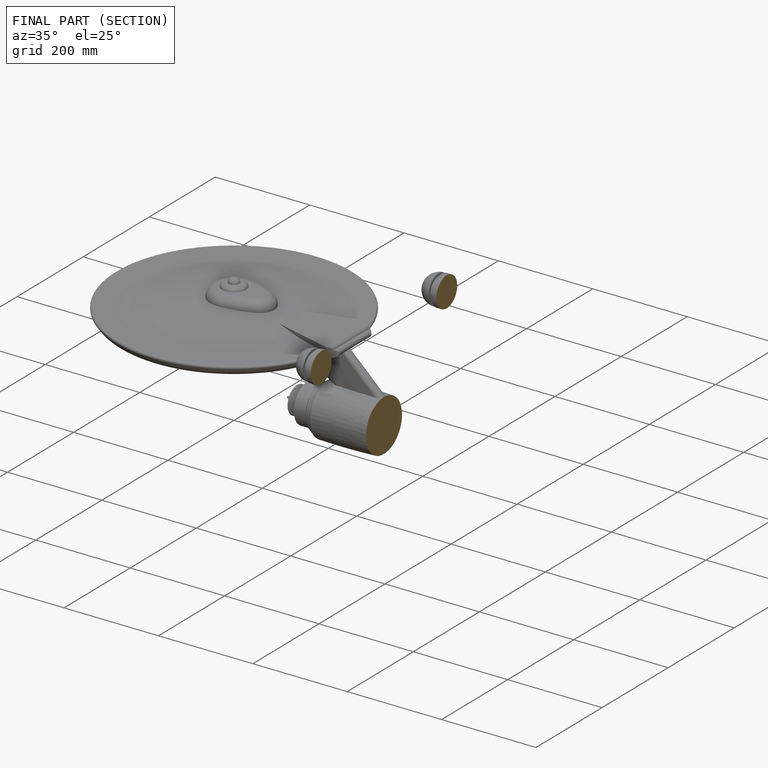
[diagram: finished part — half-section view (interior)]
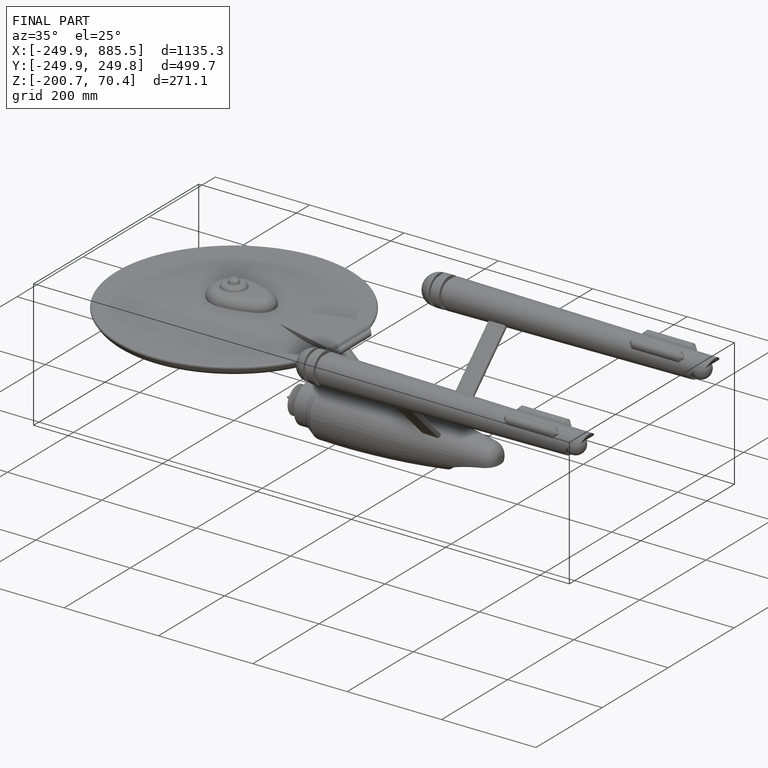
[diagram: finished part — iso view with bounding-box wireframe]
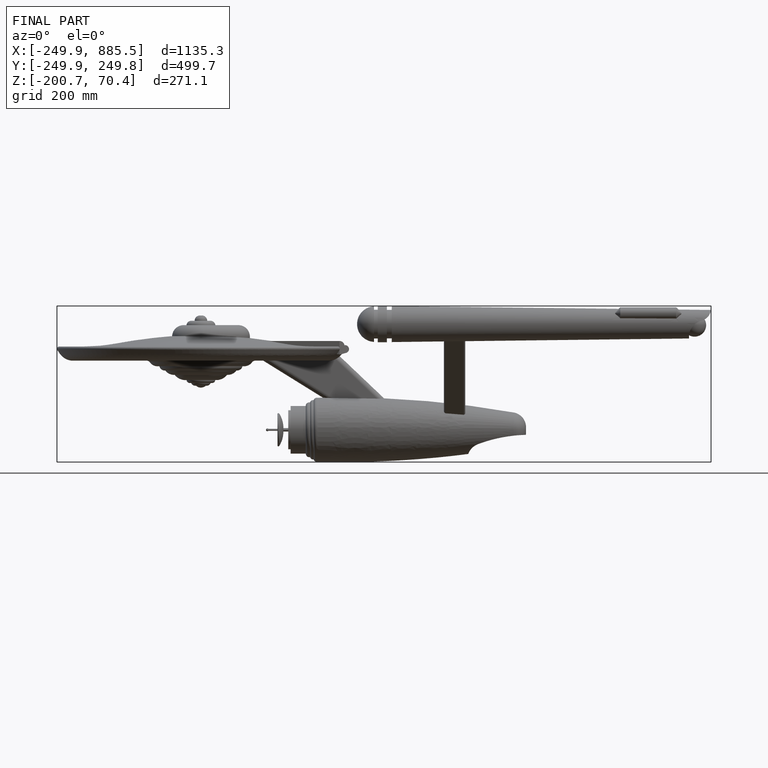
[diagram: finished part — front view with bounding-box wireframe]
